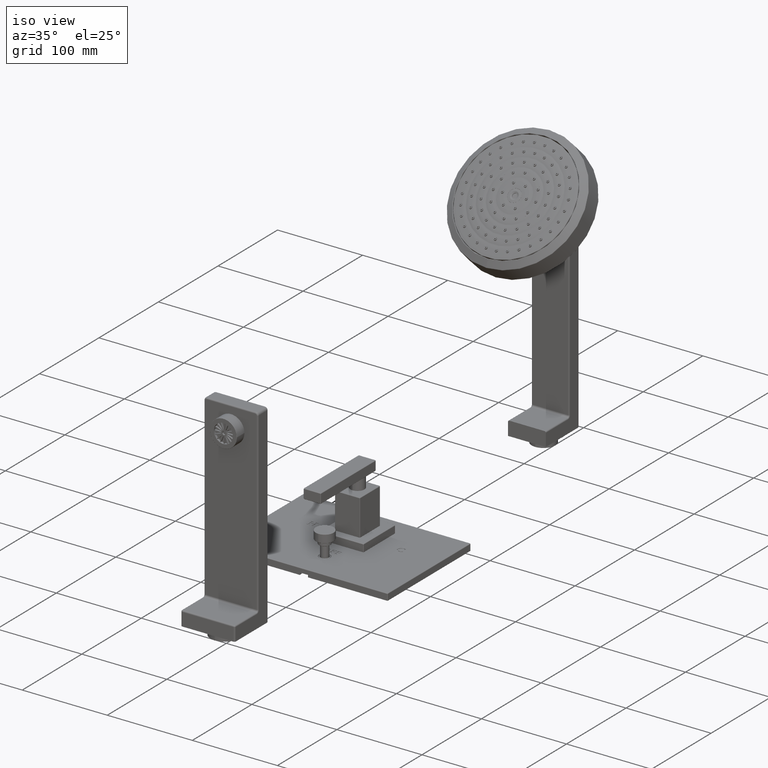
[diagram: clean part render]
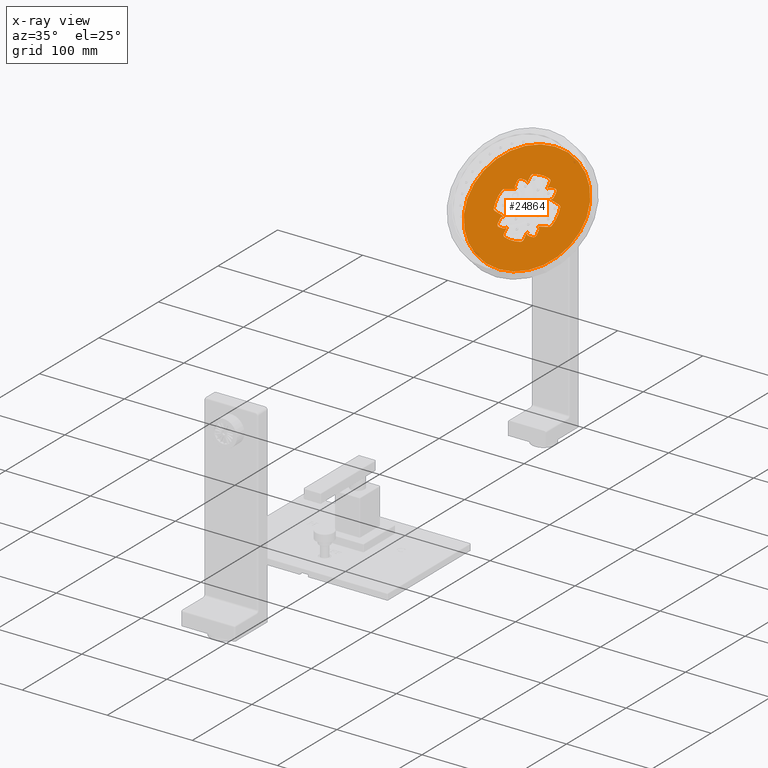
[diagram: x-ray — body ghosted, one internal face saturated and labeled with its STEP entity id]
A machine part, iso view, then the same camera in x-ray: the body is ghosted and one INTERNAL B-rep face — a face not visible from any outside direction — is saturated and labeled: STEP entity #24864.
In plain terms, the highlighted planar face has unit normal (0, 0.7071, -0.7071).
Its self-contained STEP definition (entity closure, byte-faithful):
#20668=CARTESIAN_POINT('',(9.9E-1,1.130492484542E1,9.070450337235E0));
#20669=DIRECTION('',(0.E0,-7.071067811865E-1,7.071067811865E-1));
#20670=DIRECTION('',(-9.812698847789E-1,1.362156621427E-1,1.362156621427E-1));
#20671=AXIS2_PLACEMENT_3D('',#20668,#20669,#20670);
#20728=CARTESIAN_POINT('',(7.75E-1,1.136043272775E1,9.125958219558E0));
#20729=DIRECTION('',(0.E0,7.071067811865E-1,-7.071067811865E-1));
#20730=DIRECTION('',(1.E0,0.E0,0.E0));
#20731=AXIS2_PLACEMENT_3D('',#20728,#20729,#20730);
#20750=CARTESIAN_POINT('',(0.E0,1.200496055880E1,9.770486050610E0));
#20751=DIRECTION('',(0.E0,-7.071067811865E-1,7.071067811865E-1));
#20752=DIRECTION('',(0.E0,-7.071067811865E-1,-7.071067811865E-1));
#20753=AXIS2_PLACEMENT_3D('',#20750,#20751,#20752);
#20758=CARTESIAN_POINT('',(0.E0,1.200496055880E1,9.770486050610E0));
#20759=DIRECTION('',(0.E0,7.071067811865E-1,-7.071067811865E-1));
#20760=DIRECTION('',(0.E0,-7.071067811865E-1,-7.071067811865E-1));
#20761=AXIS2_PLACEMENT_3D('',#20758,#20759,#20760);
#20766=DIRECTION('',(0.E0,7.071067811865E-1,7.071067811865E-1));
#20767=VECTOR('',#20766,2.408812899707E-1);
#20768=CARTESIAN_POINT('',(4.575E-1,1.113459605182E1,8.900121543636E0));
#20769=LINE('',#20768,#20767);
#20773=DIRECTION('',(1.E0,0.E0,0.E0));
#20774=VECTOR('',#20773,1.848674780474E-1);
#20775=CARTESIAN_POINT('',(5.901325219526E-1,1.127204438010E1,
9.037569871910E0));
#20776=LINE('',#20775,#20774);
#20780=DIRECTION('',(0.E0,7.071067811866E-1,7.071067811865E-1));
#20781=VECTOR('',#20780,2.007119865258E-1);
#20782=CARTESIAN_POINT('',(9.E-1,1.136043272775E1,9.125958219558E0));
#20783=LINE('',#20782,#20781);
#20787=DIRECTION('',(9.743700647852E-1,1.590644159616E-1,1.590644159616E-1));
#20788=VECTOR('',#20787,5.205737877171E-1);
#20789=CARTESIAN_POINT('',(7.468811182070E-1,1.158848049451E1,
9.354005986320E0));
#20790=LINE('',#20789,#20788);
#20794=DIRECTION('',(-9.743700647852E-1,1.590644159616E-1,1.590644159616E-1));
#20795=VECTOR('',#20794,5.205737877171E-1);
#20796=CARTESIAN_POINT('',(1.254112633470E0,1.233863585758E1,1.010416134939E1));
#20797=LINE('',#20796,#20795);
#20801=DIRECTION('',(0.E0,7.071067811865E-1,7.071067811865E-1));
#20802=VECTOR('',#20801,2.007119865258E-1);
#20803=CARTESIAN_POINT('',(9.E-1,1.250756358311E1,1.027308907492E1));
#20804=LINE('',#20803,#20802);
#20808=DIRECTION('',(-1.E0,0.E0,0.E0));
#20809=VECTOR('',#20808,1.848674780474E-1);
#20810=CARTESIAN_POINT('',(7.75E-1,1.273787673750E1,1.050340222931E1));
#20811=LINE('',#20810,#20809);
#20815=DIRECTION('',(0.E0,7.071067811865E-1,7.071067811866E-1));
#20816=VECTOR('',#20815,2.408812899707E-1);
#20817=CARTESIAN_POINT('',(4.575E-1,1.270499627217E1,1.047052176398E1));
#20818=LINE('',#20817,#20816);
#20822=DIRECTION('',(0.E0,-7.071067811865E-1,-7.071067811866E-1));
#20823=VECTOR('',#20822,2.408812899707E-1);
#20824=CARTESIAN_POINT('',(-4.575E-1,1.287532506577E1,1.064085055758E1));
#20825=LINE('',#20824,#20823);
#20829=DIRECTION('',(-1.E0,0.E0,0.E0));
#20830=VECTOR('',#20829,1.848674780474E-1);
#20831=CARTESIAN_POINT('',(-5.901325219526E-1,1.273787673750E1,
1.050340222931E1));
#20832=LINE('',#20831,#20830);
#20836=DIRECTION('',(0.E0,-7.071067811865E-1,-7.071067811865E-1));
#20837=VECTOR('',#20836,2.007119865258E-1);
#20838=CARTESIAN_POINT('',(-9.E-1,1.264948838985E1,1.041501388166E1));
#20839=LINE('',#20838,#20837);
#20843=DIRECTION('',(-9.743700647852E-1,-1.590644159616E-1,-1.590644159616E-1));
#20844=VECTOR('',#20843,5.205737877171E-1);
#20845=CARTESIAN_POINT('',(-7.468811182070E-1,1.242144062309E1,
1.018696611490E1));
#20846=LINE('',#20845,#20844);
#20850=DIRECTION('',(9.743700647852E-1,-1.590644159616E-1,-1.590644159616E-1));
#20851=VECTOR('',#20850,5.205737877171E-1);
#20852=CARTESIAN_POINT('',(-1.254112633470E0,1.167128526002E1,
9.436810751828E0));
#20853=LINE('',#20852,#20851);
#20857=DIRECTION('',(0.E0,-7.071067811866E-1,-7.071067811865E-1));
#20858=VECTOR('',#20857,2.007119865258E-1);
#20859=CARTESIAN_POINT('',(-9.E-1,1.150235753448E1,9.267883026296E0));
#20860=LINE('',#20859,#20858);
#20864=DIRECTION('',(1.E0,0.E0,0.E0));
#20865=VECTOR('',#20864,1.848674780474E-1);
#20866=CARTESIAN_POINT('',(-7.75E-1,1.127204438010E1,9.037569871910E0));
#20867=LINE('',#20866,#20865);
#20871=DIRECTION('',(0.E0,-7.071067811865E-1,-7.071067811865E-1));
#20872=VECTOR('',#20871,2.408812899707E-1);
#20873=CARTESIAN_POINT('',(-4.575E-1,1.130492484542E1,9.070450337235E0));
#20874=LINE('',#20873,#20872);
#22923=CARTESIAN_POINT('',(3.325E-1,1.113459605182E1,8.900121543636E0));
#22924=DIRECTION('',(0.E0,7.071067811865E-1,-7.071067811865E-1));
#22925=DIRECTION('',(1.E0,-1.421085471520E-14,0.E0));
#22926=AXIS2_PLACEMENT_3D('',#22923,#22924,#22925);
#22946=CARTESIAN_POINT('',(0.E0,1.200496055880E1,9.770486050610E0));
#22947=DIRECTION('',(0.E0,7.071067811865E-1,-7.071067811865E-1));
#22948=DIRECTION('',(2.607843137255E-1,-6.826388289992E-1,-6.826388289992E-1));
#22949=AXIS2_PLACEMENT_3D('',#22946,#22947,#22948);
#23131=CARTESIAN_POINT('',(-9.9E-1,1.130492484542E1,9.070450337235E0));
#23132=DIRECTION('',(0.E0,-7.071067811865E-1,7.071067811865E-1));
#23133=DIRECTION('',(1.E0,0.E0,0.E0));
#23134=AXIS2_PLACEMENT_3D('',#23131,#23132,#23133);
#23184=CARTESIAN_POINT('',(-7.75E-1,1.136043272775E1,9.125958219558E0));
#23185=DIRECTION('',(0.E0,7.071067811865E-1,-7.071067811865E-1));
#23186=DIRECTION('',(0.E0,-7.071067811865E-1,-7.071067811865E-1));
#23187=AXIS2_PLACEMENT_3D('',#23184,#23185,#23186);
#23213=CARTESIAN_POINT('',(-7.75E-1,1.150235753448E1,9.267883026296E0));
#23214=DIRECTION('',(0.E0,7.071067811865E-1,-7.071067811865E-1));
#23215=DIRECTION('',(-1.E0,0.E0,0.E0));
#23216=AXIS2_PLACEMENT_3D('',#23213,#23214,#23215);
#23256=CARTESIAN_POINT('',(-1.225993751677E0,1.175740822004E1,
9.522933711853E0));
#23257=DIRECTION('',(0.E0,7.071067811865E-1,-7.071067811865E-1));
#23258=DIRECTION('',(-2.249510543439E-1,-6.889836801948E-1,-6.889836801948E-1));
#23259=AXIS2_PLACEMENT_3D('',#23256,#23257,#23258);
#23278=CARTESIAN_POINT('',(0.E0,1.200496055880E1,9.770486050610E0));
#23279=DIRECTION('',(0.E0,7.071067811865E-1,-7.071067811865E-1));
#23280=DIRECTION('',(-9.615637268058E-1,-1.941586970642E-1,-1.941586970642E-1));
#23281=AXIS2_PLACEMENT_3D('',#23278,#23279,#23280);
#23286=CARTESIAN_POINT('',(-1.225993751677E0,1.225251289755E1,
1.001803838937E1));
#23287=DIRECTION('',(0.E0,7.071067811865E-1,-7.071067811865E-1));
#23288=DIRECTION('',(-9.615637268058E-1,1.941586970642E-1,1.941586970642E-1));
#23289=AXIS2_PLACEMENT_3D('',#23286,#23287,#23288);
#23322=CARTESIAN_POINT('',(-7.75E-1,1.250756358311E1,1.027308907492E1));
#23323=DIRECTION('',(0.E0,7.071067811865E-1,-7.071067811865E-1));
#23324=DIRECTION('',(2.249510543439E-1,-6.889836801948E-1,-6.889836801948E-1));
#23325=AXIS2_PLACEMENT_3D('',#23322,#23323,#23324);
#23344=CARTESIAN_POINT('',(-7.75E-1,1.264948838985E1,1.041501388166E1));
#23345=DIRECTION('',(0.E0,7.071067811865E-1,-7.071067811865E-1));
#23346=DIRECTION('',(-1.E0,0.E0,0.E0));
#23347=AXIS2_PLACEMENT_3D('',#23344,#23345,#23346);
#23366=CARTESIAN_POINT('',(-5.901325219526E-1,1.264948838985E1,
1.041501388166E1));
#23367=DIRECTION('',(0.E0,7.071067811865E-1,-7.071067811865E-1));
#23368=DIRECTION('',(1.092459456231E-13,7.071067811865E-1,7.071067811865E-1));
#23369=AXIS2_PLACEMENT_3D('',#23366,#23367,#23368);
#23419=CARTESIAN_POINT('',(-9.9E-1,1.270499627217E1,1.047052176398E1));
#23420=DIRECTION('',(0.E0,-7.071067811865E-1,7.071067811865E-1));
#23421=DIRECTION('',(9.812698847789E-1,-1.362156621427E-1,-1.362156621427E-1));
#23422=AXIS2_PLACEMENT_3D('',#23419,#23420,#23421);
#23455=CARTESIAN_POINT('',(-3.325E-1,1.287532506577E1,1.064085055758E1));
#23456=DIRECTION('',(0.E0,7.071067811865E-1,-7.071067811865E-1));
#23457=DIRECTION('',(-1.E0,1.421085471520E-14,1.421085471520E-14));
#23458=AXIS2_PLACEMENT_3D('',#23455,#23456,#23457);
#23463=CARTESIAN_POINT('',(0.E0,1.200496055880E1,9.770486050610E0));
#23464=DIRECTION('',(0.E0,7.071067811865E-1,-7.071067811865E-1));
#23465=DIRECTION('',(-2.607843137255E-1,6.826388289992E-1,6.826388289992E-1));
#23466=AXIS2_PLACEMENT_3D('',#23463,#23464,#23465);
#23493=CARTESIAN_POINT('',(3.325E-1,1.287532506577E1,1.064085055758E1));
#23494=DIRECTION('',(0.E0,7.071067811865E-1,-7.071067811865E-1));
#23495=DIRECTION('',(2.607843137255E-1,6.826388289992E-1,6.826388289992E-1));
#23496=AXIS2_PLACEMENT_3D('',#23493,#23494,#23495);
#23522=CARTESIAN_POINT('',(9.9E-1,1.270499627217E1,1.047052176398E1));
#23523=DIRECTION('',(0.E0,-7.071067811865E-1,7.071067811865E-1));
#23524=DIRECTION('',(-1.E0,0.E0,0.E0));
#23525=AXIS2_PLACEMENT_3D('',#23522,#23523,#23524);
#23575=CARTESIAN_POINT('',(7.75E-1,1.264948838985E1,1.041501388166E1));
#23576=DIRECTION('',(0.E0,7.071067811865E-1,-7.071067811865E-1));
#23577=DIRECTION('',(0.E0,7.071067811865E-1,7.071067811865E-1));
#23578=AXIS2_PLACEMENT_3D('',#23575,#23576,#23577);
#23604=CARTESIAN_POINT('',(7.75E-1,1.250756358311E1,1.027308907492E1));
#23605=DIRECTION('',(0.E0,7.071067811865E-1,-7.071067811865E-1));
#23606=DIRECTION('',(1.E0,0.E0,0.E0));
#23607=AXIS2_PLACEMENT_3D('',#23604,#23605,#23606);
#23647=CARTESIAN_POINT('',(1.225993751677E0,1.225251289755E1,1.001803838937E1));
#23648=DIRECTION('',(0.E0,7.071067811865E-1,-7.071067811865E-1));
#23649=DIRECTION('',(2.249510543439E-1,6.889836801948E-1,6.889836801948E-1));
#23650=AXIS2_PLACEMENT_3D('',#23647,#23648,#23649);
#23662=CARTESIAN_POINT('',(0.E0,1.200496055880E1,9.770486050610E0));
#23663=DIRECTION('',(0.E0,-7.071067811865E-1,7.071067811865E-1));
#23664=DIRECTION('',(9.615637268058E-1,-1.941586970642E-1,-1.941586970642E-1));
#23665=AXIS2_PLACEMENT_3D('',#23662,#23663,#23664);
#23677=CARTESIAN_POINT('',(1.225993751677E0,1.175740822004E1,9.522933711853E0));
#23678=DIRECTION('',(0.E0,7.071067811865E-1,-7.071067811865E-1));
#23679=DIRECTION('',(9.615637268058E-1,-1.941586970642E-1,-1.941586970642E-1));
#23680=AXIS2_PLACEMENT_3D('',#23677,#23678,#23679);
#23720=CARTESIAN_POINT('',(7.75E-1,1.150235753448E1,9.267883026296E0));
#23721=DIRECTION('',(0.E0,7.071067811865E-1,-7.071067811865E-1));
#23722=DIRECTION('',(-2.249510543439E-1,6.889836801948E-1,6.889836801948E-1));
#23723=AXIS2_PLACEMENT_3D('',#23720,#23721,#23722);
#23876=CARTESIAN_POINT('',(5.901325219526E-1,1.264948838985E1,
1.041501388166E1));
#23877=DIRECTION('',(0.E0,7.071067811865E-1,-7.071067811865E-1));
#23878=DIRECTION('',(-9.812698847789E-1,-1.362156621427E-1,-1.362156621427E-1));
#23879=AXIS2_PLACEMENT_3D('',#23876,#23877,#23878);
#24025=CARTESIAN_POINT('',(-5.901325219526E-1,1.136043272775E1,
9.125958219558E0));
#24026=DIRECTION('',(0.E0,7.071067811865E-1,-7.071067811865E-1));
#24027=DIRECTION('',(9.812698847789E-1,1.362156621427E-1,1.362156621427E-1));
#24028=AXIS2_PLACEMENT_3D('',#24025,#24026,#24027);
#24040=CARTESIAN_POINT('',(-3.325E-1,1.113459605182E1,8.900121543636E0));
#24041=DIRECTION('',(0.E0,7.071067811865E-1,-7.071067811865E-1));
#24042=DIRECTION('',(-2.607843137255E-1,-6.826388289992E-1,-6.826388289992E-1));
#24043=AXIS2_PLACEMENT_3D('',#24040,#24041,#24042);
#24172=CARTESIAN_POINT('',(5.901325219526E-1,1.136043272775E1,
9.125958219558E0));
#24173=DIRECTION('',(0.E0,7.071067811865E-1,-7.071067811865E-1));
#24174=DIRECTION('',(-1.199040866595E-13,-7.071067811865E-1,
-7.071067811865E-1));
#24175=AXIS2_PLACEMENT_3D('',#24172,#24173,#24174);
#24261=CARTESIAN_POINT('',(0.E0,1.014668393784E1,7.912209429651E0));
#24262=CARTESIAN_POINT('',(0.E0,1.386323717976E1,1.162876267157E1));
#24263=VERTEX_POINT('',#24261);
#24264=VERTEX_POINT('',#24262);
#24325=CARTESIAN_POINT('',(-1.346189217528E0,1.227678273469E1,
1.004230822650E1));
#24326=VERTEX_POINT('',#24325);
#24327=CARTESIAN_POINT('',(-1.254112633470E0,1.233863585758E1,
1.010416134939E1));
#24328=VERTEX_POINT('',#24327);
#24329=CARTESIAN_POINT('',(-1.346189217528E0,1.173313838291E1,
9.498663874720E0));
#24330=VERTEX_POINT('',#24329);
#24334=CARTESIAN_POINT('',(1.346189217528E0,1.227678273469E1,1.004230822650E1));
#24336=VERTEX_POINT('',#24334);
#24339=CARTESIAN_POINT('',(1.254112633470E0,1.233863585758E1,1.010416134939E1));
#24340=VERTEX_POINT('',#24339);
#24345=CARTESIAN_POINT('',(1.346189217528E0,1.173313838291E1,9.498663874720E0));
#24346=VERTEX_POINT('',#24345);
#24347=CARTESIAN_POINT('',(1.254112633470E0,1.167128526002E1,9.436810751828E0));
#24348=VERTEX_POINT('',#24347);
#24349=CARTESIAN_POINT('',(-3.650980392157E-1,1.296065491940E1,
1.072618041121E1));
#24350=CARTESIAN_POINT('',(3.650980392157E-1,1.296065491940E1,
1.072618041121E1));
#24351=VERTEX_POINT('',#24349);
#24352=VERTEX_POINT('',#24350);
#24361=CARTESIAN_POINT('',(3.650980392157E-1,1.104926619820E1,
8.814791690011E0));
#24362=CARTESIAN_POINT('',(-3.650980392157E-1,1.104926619820E1,
8.814791690011E0));
#24363=VERTEX_POINT('',#24361);
#24364=VERTEX_POINT('',#24362);
#24371=CARTESIAN_POINT('',(-1.254112633470E0,1.167128526002E1,
9.436810751828E0));
#24372=VERTEX_POINT('',#24371);
#24374=CARTESIAN_POINT('',(7.75E-1,1.127204438010E1,9.037569871910E0));
#24376=VERTEX_POINT('',#24374);
#24378=CARTESIAN_POINT('',(9.E-1,1.136043272775E1,9.125958219558E0));
#24380=VERTEX_POINT('',#24378);
#24382=CARTESIAN_POINT('',(-9.E-1,1.136043272775E1,9.125958219558E0));
#24384=VERTEX_POINT('',#24382);
#24386=CARTESIAN_POINT('',(-7.75E-1,1.127204438010E1,9.037569871910E0));
#24388=VERTEX_POINT('',#24386);
#24390=CARTESIAN_POINT('',(9.E-1,1.264948838985E1,1.041501388166E1));
#24392=VERTEX_POINT('',#24390);
#24394=CARTESIAN_POINT('',(7.75E-1,1.273787673750E1,1.050340222931E1));
#24396=VERTEX_POINT('',#24394);
#24398=CARTESIAN_POINT('',(-7.75E-1,1.273787673750E1,1.050340222931E1));
#24400=VERTEX_POINT('',#24398);
#24402=CARTESIAN_POINT('',(-9.E-1,1.264948838985E1,1.041501388166E1));
#24404=VERTEX_POINT('',#24402);
#24406=CARTESIAN_POINT('',(9.E-1,1.150235753448E1,9.267883026296E0));
#24408=VERTEX_POINT('',#24406);
#24411=CARTESIAN_POINT('',(7.468811182070E-1,1.158848049451E1,
9.354005986320E0));
#24412=VERTEX_POINT('',#24411);
#24414=CARTESIAN_POINT('',(-7.468811182070E-1,1.158848049451E1,
9.354005986320E0));
#24416=VERTEX_POINT('',#24414);
#24419=CARTESIAN_POINT('',(-9.E-1,1.150235753448E1,9.267883026296E0));
#24420=VERTEX_POINT('',#24419);
#24422=CARTESIAN_POINT('',(7.468811182070E-1,1.242144062309E1,
1.018696611490E1));
#24424=VERTEX_POINT('',#24422);
#24427=CARTESIAN_POINT('',(9.E-1,1.250756358311E1,1.027308907492E1));
#24428=VERTEX_POINT('',#24427);
#24430=CARTESIAN_POINT('',(-9.E-1,1.250756358311E1,1.027308907492E1));
#24432=VERTEX_POINT('',#24430);
#24435=CARTESIAN_POINT('',(-7.468811182070E-1,1.242144062309E1,
1.018696611490E1));
#24436=VERTEX_POINT('',#24435);
#24437=CARTESIAN_POINT('',(-5.901325219526E-1,1.273787673750E1,
1.050340222931E1));
#24438=VERTEX_POINT('',#24437);
#24439=CARTESIAN_POINT('',(5.901325219526E-1,1.273787673750E1,
1.050340222931E1));
#24440=VERTEX_POINT('',#24439);
#24441=CARTESIAN_POINT('',(-5.901325219526E-1,1.127204438010E1,
9.037569871910E0));
#24442=VERTEX_POINT('',#24441);
#24443=CARTESIAN_POINT('',(5.901325219526E-1,1.127204438010E1,
9.037569871910E0));
#24444=VERTEX_POINT('',#24443);
#24511=CARTESIAN_POINT('',(4.575E-1,1.287532506577E1,1.064085055758E1));
#24512=VERTEX_POINT('',#24511);
#24515=CARTESIAN_POINT('',(-4.575E-1,1.287532506577E1,1.064085055758E1));
#24516=VERTEX_POINT('',#24515);
#24519=CARTESIAN_POINT('',(-4.575E-1,1.113459605182E1,8.900121543636E0));
#24520=VERTEX_POINT('',#24519);
#24523=CARTESIAN_POINT('',(4.575E-1,1.113459605182E1,8.900121543636E0));
#24524=VERTEX_POINT('',#24523);
#24549=CARTESIAN_POINT('',(4.674737863552E-1,1.137745968551E1,
9.142985177326E0));
#24550=VERTEX_POINT('',#24549);
#24551=CARTESIAN_POINT('',(4.674737863552E-1,1.263246143208E1,
1.039798692389E1));
#24552=VERTEX_POINT('',#24551);
#24553=CARTESIAN_POINT('',(-4.674737863552E-1,1.137745968551E1,
9.142985177326E0));
#24554=VERTEX_POINT('',#24553);
#24555=CARTESIAN_POINT('',(-4.674737863552E-1,1.263246143208E1,
1.039798692389E1));
#24556=VERTEX_POINT('',#24555);
#24557=CARTESIAN_POINT('',(4.575E-1,1.130492484542E1,9.070450337235E0));
#24558=VERTEX_POINT('',#24557);
#24559=CARTESIAN_POINT('',(4.575E-1,1.270499627217E1,1.047052176398E1));
#24560=VERTEX_POINT('',#24559);
#24561=CARTESIAN_POINT('',(-4.575E-1,1.130492484542E1,9.070450337235E0));
#24562=VERTEX_POINT('',#24561);
#24563=CARTESIAN_POINT('',(-4.575E-1,1.270499627217E1,1.047052176398E1));
#24564=VERTEX_POINT('',#24563);
#24766=CARTESIAN_POINT('',(0.E0,1.200496055880E1,9.770486050610E0));
#24767=DIRECTION('',(0.E0,7.071067811865E-1,-7.071067811865E-1));
#24768=DIRECTION('',(0.E0,7.071067811865E-1,7.071067811865E-1));
#24769=AXIS2_PLACEMENT_3D('',#24766,#24767,#24768);
#24770=PLANE('',#24769);
#24772=ORIENTED_EDGE('',*,*,#24771,.F.);
#24774=ORIENTED_EDGE('',*,*,#24773,.T.);
#24775=EDGE_LOOP('',(#24772,#24774));
#24776=FACE_OUTER_BOUND('',#24775,.F.);
#24778=ORIENTED_EDGE('',*,*,#24777,.T.);
#24779=ORIENTED_EDGE('',*,*,#24675,.F.);
#24781=ORIENTED_EDGE('',*,*,#24780,.F.);
#24782=ORIENTED_EDGE('',*,*,#24751,.T.);
#24783=ORIENTED_EDGE('',*,*,#24733,.F.);
#24785=ORIENTED_EDGE('',*,*,#24784,.T.);
#24787=ORIENTED_EDGE('',*,*,#24786,.F.);
#24789=ORIENTED_EDGE('',*,*,#24788,.T.);
#24791=ORIENTED_EDGE('',*,*,#24790,.F.);
#24793=ORIENTED_EDGE('',*,*,#24792,.T.);
#24795=ORIENTED_EDGE('',*,*,#24794,.F.);
#24797=ORIENTED_EDGE('',*,*,#24796,.T.);
#24799=ORIENTED_EDGE('',*,*,#24798,.F.);
#24801=ORIENTED_EDGE('',*,*,#24800,.T.);
#24803=ORIENTED_EDGE('',*,*,#24802,.F.);
#24805=ORIENTED_EDGE('',*,*,#24804,.T.);
#24807=ORIENTED_EDGE('',*,*,#24806,.F.);
#24809=ORIENTED_EDGE('',*,*,#24808,.F.);
#24811=ORIENTED_EDGE('',*,*,#24810,.T.);
#24813=ORIENTED_EDGE('',*,*,#24812,.F.);
#24815=ORIENTED_EDGE('',*,*,#24814,.F.);
#24817=ORIENTED_EDGE('',*,*,#24816,.F.);
#24819=ORIENTED_EDGE('',*,*,#24818,.T.);
#24821=ORIENTED_EDGE('',*,*,#24820,.F.);
#24823=ORIENTED_EDGE('',*,*,#24822,.F.);
#24825=ORIENTED_EDGE('',*,*,#24824,.T.);
#24827=ORIENTED_EDGE('',*,*,#24826,.F.);
#24829=ORIENTED_EDGE('',*,*,#24828,.T.);
#24831=ORIENTED_EDGE('',*,*,#24830,.F.);
#24833=ORIENTED_EDGE('',*,*,#24832,.T.);
#24835=ORIENTED_EDGE('',*,*,#24834,.F.);
#24837=ORIENTED_EDGE('',*,*,#24836,.F.);
#24839=ORIENTED_EDGE('',*,*,#24838,.F.);
#24841=ORIENTED_EDGE('',*,*,#24840,.T.);
#24843=ORIENTED_EDGE('',*,*,#24842,.F.);
#24845=ORIENTED_EDGE('',*,*,#24844,.T.);
#24847=ORIENTED_EDGE('',*,*,#24846,.F.);
#24849=ORIENTED_EDGE('',*,*,#24848,.T.);
#24851=ORIENTED_EDGE('',*,*,#24850,.F.);
#24853=ORIENTED_EDGE('',*,*,#24852,.F.);
#24855=ORIENTED_EDGE('',*,*,#24854,.T.);
#24857=ORIENTED_EDGE('',*,*,#24856,.F.);
#24859=ORIENTED_EDGE('',*,*,#24858,.F.);
#24861=ORIENTED_EDGE('',*,*,#24860,.F.);
#24862=EDGE_LOOP('',(#24778,#24779,#24781,#24782,#24783,#24785,#24787,#24789,
#24791,#24793,#24795,#24797,#24799,#24801,#24803,#24805,#24807,#24809,#24811,
#24813,#24815,#24817,#24819,#24821,#24823,#24825,#24827,#24829,#24831,#24833,
#24835,#24837,#24839,#24841,#24843,#24845,#24847,#24849,#24851,#24853,#24855,
#24857,#24859,#24861));
#24863=FACE_BOUND('',#24862,.F.);
#20672=CIRCLE('',#20671,5.325E-1);
#20732=CIRCLE('',#20731,1.25E-1);
#20754=CIRCLE('',#20753,2.628E0);
#20762=CIRCLE('',#20761,2.628E0);
#22927=CIRCLE('',#22926,1.25E-1);
#22950=CIRCLE('',#22949,1.4E0);
#23135=CIRCLE('',#23134,5.325E-1);
#23188=CIRCLE('',#23187,1.25E-1);
#23217=CIRCLE('',#23216,1.25E-1);
#23260=CIRCLE('',#23259,1.25E-1);
#23282=CIRCLE('',#23281,1.4E0);
#23290=CIRCLE('',#23289,1.25E-1);
#23326=CIRCLE('',#23325,1.25E-1);
#23348=CIRCLE('',#23347,1.25E-1);
#23370=CIRCLE('',#23369,1.25E-1);
#23423=CIRCLE('',#23422,5.325E-1);
#23459=CIRCLE('',#23458,1.25E-1);
#23467=CIRCLE('',#23466,1.4E0);
#23497=CIRCLE('',#23496,1.25E-1);
#23526=CIRCLE('',#23525,5.325E-1);
#23579=CIRCLE('',#23578,1.25E-1);
#23608=CIRCLE('',#23607,1.25E-1);
#23651=CIRCLE('',#23650,1.25E-1);
#23666=CIRCLE('',#23665,1.4E0);
#23681=CIRCLE('',#23680,1.25E-1);
#23724=CIRCLE('',#23723,1.25E-1);
#23880=CIRCLE('',#23879,1.25E-1);
#24029=CIRCLE('',#24028,1.25E-1);
#24044=CIRCLE('',#24043,1.25E-1);
#24176=CIRCLE('',#24175,1.25E-1);
#24675=EDGE_CURVE('',#24550,#24558,#20672,.T.);
#24733=EDGE_CURVE('',#24380,#24376,#20732,.T.);
#24751=EDGE_CURVE('',#24444,#24376,#20776,.T.);
#24771=EDGE_CURVE('',#24263,#24264,#20754,.T.);
#24773=EDGE_CURVE('',#24263,#24264,#20762,.T.);
#24777=EDGE_CURVE('',#24524,#24558,#20769,.T.);
#24780=EDGE_CURVE('',#24444,#24550,#24176,.T.);
#24784=EDGE_CURVE('',#24380,#24408,#20783,.T.);
#24786=EDGE_CURVE('',#24412,#24408,#23724,.T.);
#24788=EDGE_CURVE('',#24412,#24348,#20790,.T.);
#24790=EDGE_CURVE('',#24346,#24348,#23681,.T.);
#24792=EDGE_CURVE('',#24346,#24336,#23666,.T.);
#24794=EDGE_CURVE('',#24340,#24336,#23651,.T.);
#24796=EDGE_CURVE('',#24340,#24424,#20797,.T.);
#24798=EDGE_CURVE('',#24428,#24424,#23608,.T.);
#24800=EDGE_CURVE('',#24428,#24392,#20804,.T.);
#24802=EDGE_CURVE('',#24396,#24392,#23579,.T.);
#24804=EDGE_CURVE('',#24396,#24440,#20811,.T.);
#24806=EDGE_CURVE('',#24552,#24440,#23880,.T.);
#24808=EDGE_CURVE('',#24560,#24552,#23526,.T.);
#24810=EDGE_CURVE('',#24560,#24512,#20818,.T.);
#24812=EDGE_CURVE('',#24352,#24512,#23497,.T.);
#24814=EDGE_CURVE('',#24351,#24352,#23467,.T.);
#24816=EDGE_CURVE('',#24516,#24351,#23459,.T.);
#24818=EDGE_CURVE('',#24516,#24564,#20825,.T.);
#24820=EDGE_CURVE('',#24556,#24564,#23423,.T.);
#24822=EDGE_CURVE('',#24438,#24556,#23370,.T.);
#24824=EDGE_CURVE('',#24438,#24400,#20832,.T.);
#24826=EDGE_CURVE('',#24404,#24400,#23348,.T.);
#24828=EDGE_CURVE('',#24404,#24432,#20839,.T.);
#24830=EDGE_CURVE('',#24436,#24432,#23326,.T.);
#24832=EDGE_CURVE('',#24436,#24328,#20846,.T.);
#24834=EDGE_CURVE('',#24326,#24328,#23290,.T.);
#24836=EDGE_CURVE('',#24330,#24326,#23282,.T.);
#24838=EDGE_CURVE('',#24372,#24330,#23260,.T.);
#24840=EDGE_CURVE('',#24372,#24416,#20853,.T.);
#24842=EDGE_CURVE('',#24420,#24416,#23217,.T.);
#24844=EDGE_CURVE('',#24420,#24384,#20860,.T.);
#24846=EDGE_CURVE('',#24388,#24384,#23188,.T.);
#24848=EDGE_CURVE('',#24388,#24442,#20867,.T.);
#24850=EDGE_CURVE('',#24554,#24442,#24029,.T.);
#24852=EDGE_CURVE('',#24562,#24554,#23135,.T.);
#24854=EDGE_CURVE('',#24562,#24520,#20874,.T.);
#24856=EDGE_CURVE('',#24364,#24520,#24044,.T.);
#24858=EDGE_CURVE('',#24363,#24364,#22950,.T.);
#24860=EDGE_CURVE('',#24524,#24363,#22927,.T.);
#24864=ADVANCED_FACE('',(#24776,#24863),#24770,.F.);